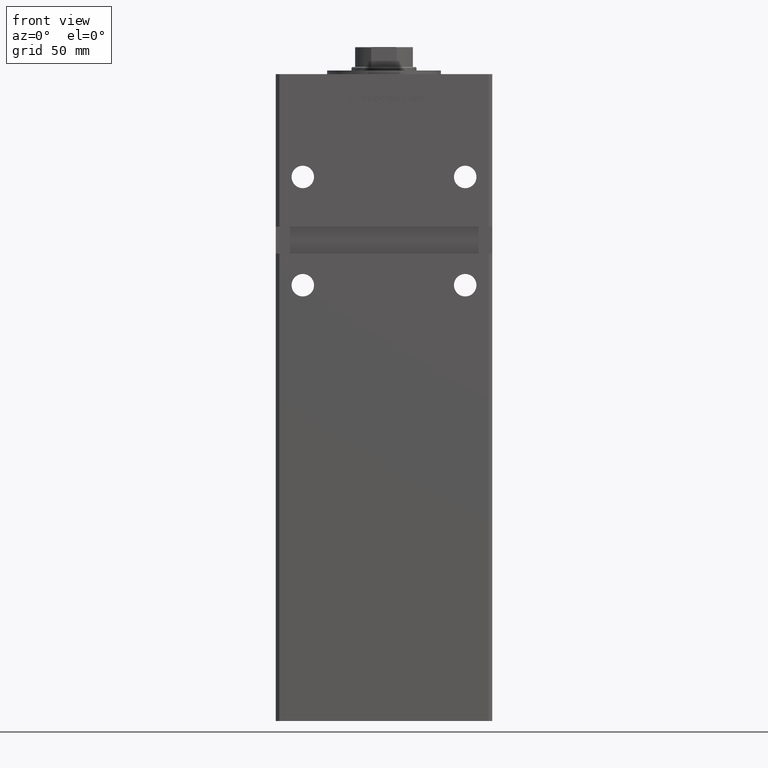
[diagram: clean part render]
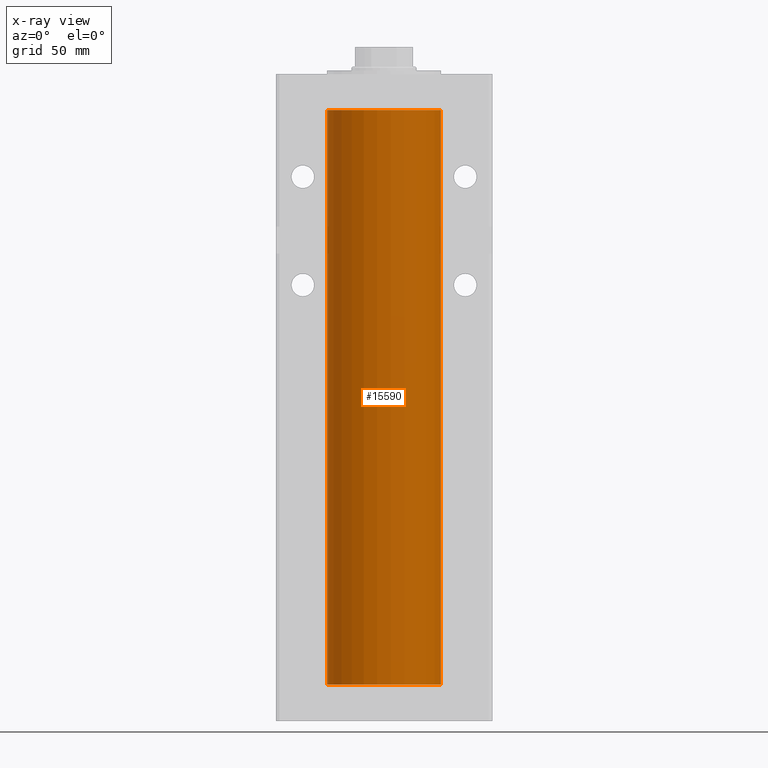
[diagram: x-ray — body ghosted, one internal face saturated and labeled with its STEP entity id]
A machine part, front view, then the same camera in x-ray: the body is ghosted and one INTERNAL B-rep face — a face not visible from any outside direction — is saturated and labeled: STEP entity #15590.
In plain terms, the highlighted cylindrical surface (partial cylindrical patch) has radius 31.5 mm, axis along (-0, -0, -1).
Its self-contained STEP definition (entity closure, byte-faithful):
#3231 = VERTEX_POINT ( 'NONE', #17532 ) ;
#3280 = CARTESIAN_POINT ( 'NONE',  ( 0.000000000000000000, 0.000000000000000000, 0.000000000000000000 ) ) ;
#3541 = DIRECTION ( 'NONE',  ( 1.000000000000000000, 0.000000000000000000, 0.000000000000000000 ) ) ;
#5777 = EDGE_LOOP ( 'NONE', ( #29820, #34997, #32215, #51392 ) ) ;
#5939 = CIRCLE ( 'NONE', #23957, 31.50000000000000000 ) ;
#6049 = EDGE_CURVE ( 'NONE', #3231, #21481, #42554, .T. ) ;
#7222 = CARTESIAN_POINT ( 'NONE',  ( -31.50000000000000000, 0.000000000000000000, 0.000000000000000000 ) ) ;
#8155 = DIRECTION ( 'NONE',  ( -0.000000000000000000, 0.000000000000000000, 1.000000000000000000 ) ) ;
#9427 = CARTESIAN_POINT ( 'NONE',  ( 0.000000000000000000, 0.000000000000000000, 318.5000000000000000 ) ) ;
#10115 = VERTEX_POINT ( 'NONE', #10841 ) ;
#10841 = CARTESIAN_POINT ( 'NONE',  ( 31.50000000000000000, 3.857637417314162689E-15, 318.5000000000000000 ) ) ;
#13633 = VERTEX_POINT ( 'NONE', #15851 ) ;
#13988 = FACE_OUTER_BOUND ( 'NONE', #5777, .T. ) ;
#14618 = DIRECTION ( 'NONE',  ( -0.000000000000000000, -0.000000000000000000, -1.000000000000000000 ) ) ;
#15590 = ADVANCED_FACE ( 'NONE', ( #13988 ), #25806, .F. ) ;
#15851 = CARTESIAN_POINT ( 'NONE',  ( 31.50000000000000000, 3.857637417314162689E-15, 0.000000000000000000 ) ) ;
#17532 = CARTESIAN_POINT ( 'NONE',  ( -31.50000000000000000, 0.000000000000000000, 318.5000000000000000 ) ) ;
#20251 = VECTOR ( 'NONE', #46860, 1000.000000000000000 ) ;
#21481 = VERTEX_POINT ( 'NONE', #7222 ) ;
#23957 = AXIS2_PLACEMENT_3D ( 'NONE', #44928, #8155, #34423 ) ;
#25806 = CYLINDRICAL_SURFACE ( 'NONE', #38424, 31.50000000000000000 ) ;
#26765 = EDGE_CURVE ( 'NONE', #10115, #13633, #43309, .T. ) ;
#28414 = CIRCLE ( 'NONE', #42127, 31.50000000000000000 ) ;
#29820 = ORIENTED_EDGE ( 'NONE', *, *, #42728, .T. ) ;
#30472 = CARTESIAN_POINT ( 'NONE',  ( -31.50000000000000000, 0.000000000000000000, 318.5000000000000000 ) ) ;
#31298 = VECTOR ( 'NONE', #14618, 1000.000000000000000 ) ;
#32215 = ORIENTED_EDGE ( 'NONE', *, *, #48369, .F. ) ;
#34364 = DIRECTION ( 'NONE',  ( -1.000000000000000000, 0.000000000000000000, 0.000000000000000000 ) ) ;
#34423 = DIRECTION ( 'NONE',  ( 1.000000000000000000, 0.000000000000000000, 0.000000000000000000 ) ) ;
#34997 = ORIENTED_EDGE ( 'NONE', *, *, #26765, .T. ) ;
#38424 = AXIS2_PLACEMENT_3D ( 'NONE', #9427, #46468, #34364 ) ;
#39556 = CARTESIAN_POINT ( 'NONE',  ( 31.50000000000000000, 3.857637417314162689E-15, 318.5000000000000000 ) ) ;
#42127 = AXIS2_PLACEMENT_3D ( 'NONE', #3280, #48875, #3541 ) ;
#42554 = LINE ( 'NONE', #30472, #20251 ) ;
#42728 = EDGE_CURVE ( 'NONE', #3231, #10115, #5939, .T. ) ;
#43309 = LINE ( 'NONE', #39556, #31298 ) ;
#44928 = CARTESIAN_POINT ( 'NONE',  ( 0.000000000000000000, 0.000000000000000000, 318.5000000000000000 ) ) ;
#46468 = DIRECTION ( 'NONE',  ( -0.000000000000000000, -0.000000000000000000, -1.000000000000000000 ) ) ;
#46860 = DIRECTION ( 'NONE',  ( -0.000000000000000000, -0.000000000000000000, -1.000000000000000000 ) ) ;
#48369 = EDGE_CURVE ( 'NONE', #21481, #13633, #28414, .T. ) ;
#48875 = DIRECTION ( 'NONE',  ( -0.000000000000000000, 0.000000000000000000, 1.000000000000000000 ) ) ;
#51392 = ORIENTED_EDGE ( 'NONE', *, *, #6049, .F. ) ;